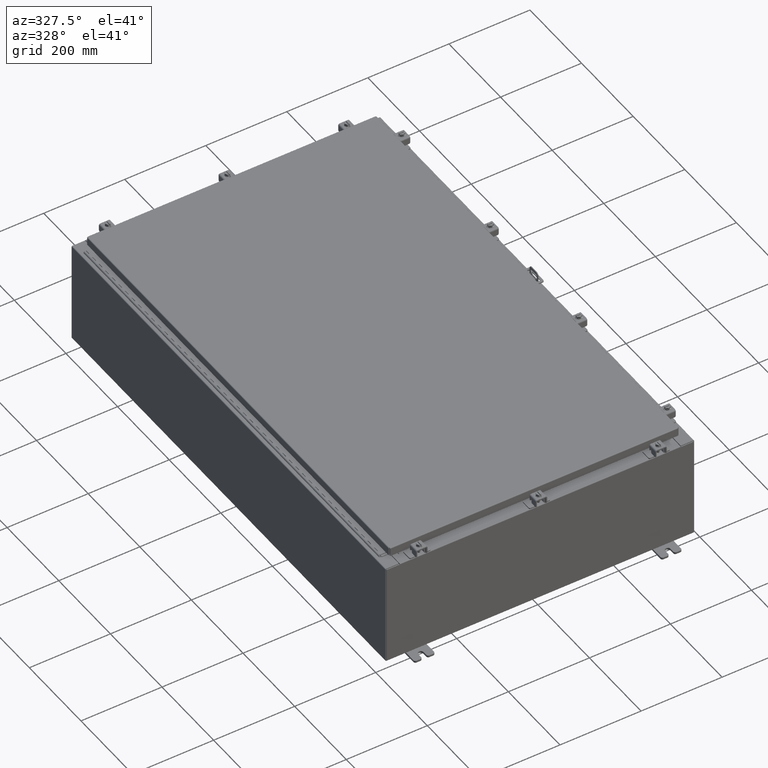
[diagram: clean part render]
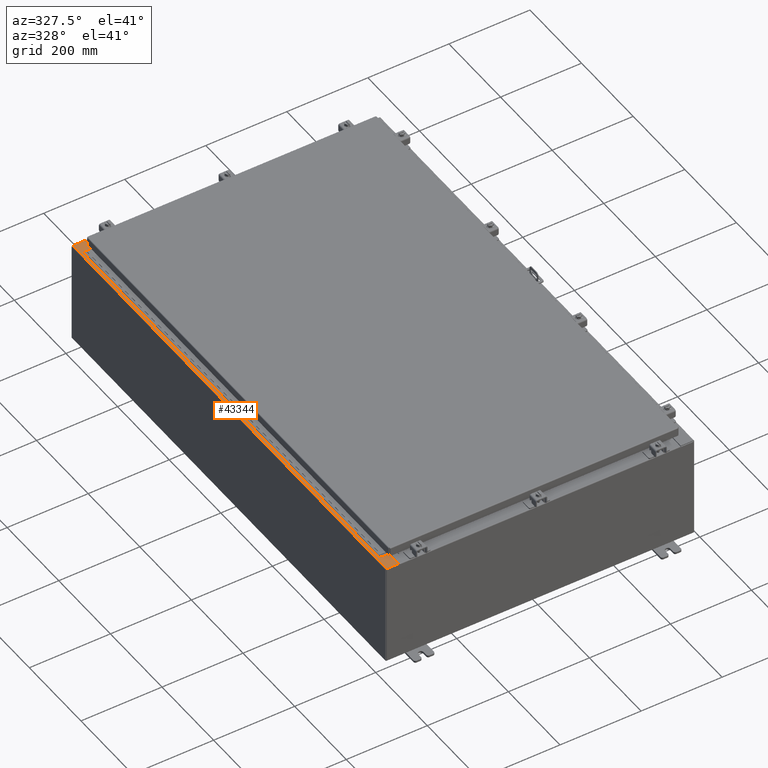
[diagram: same view with one face highlighted and labeled with its STEP entity id]
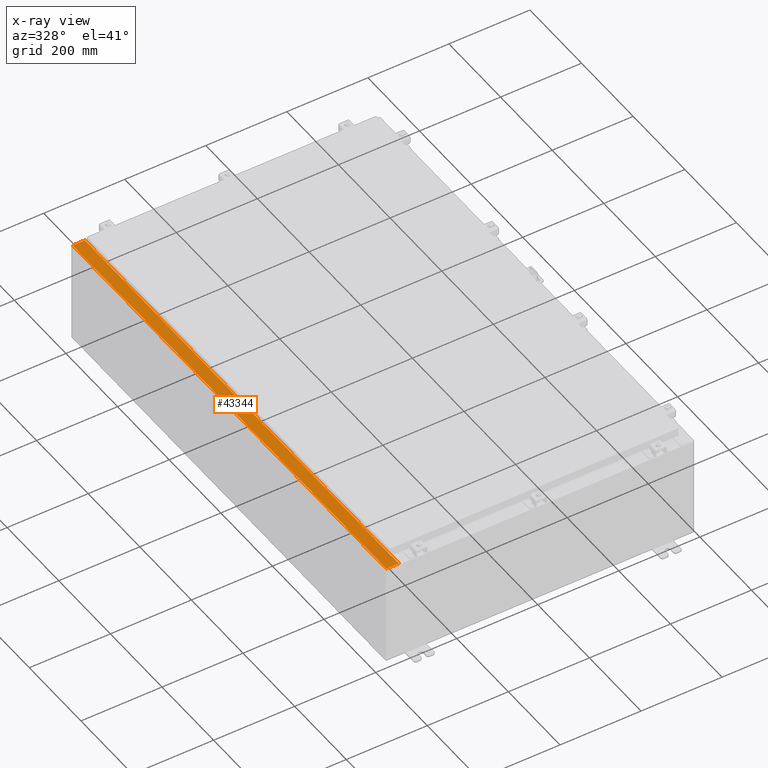
[diagram: x-ray of the same camera — body ghosted, the highlighted face saturated]
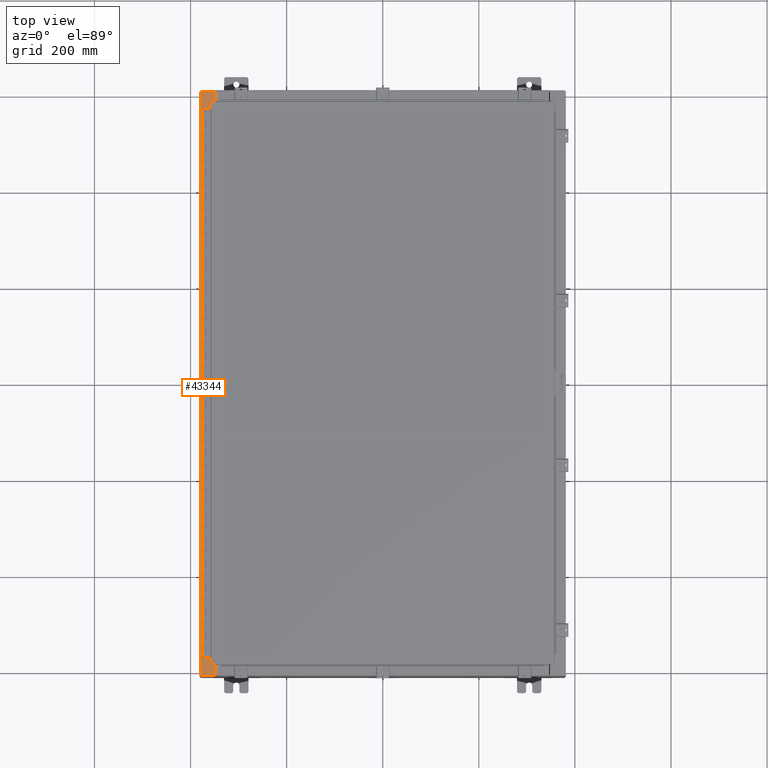
[diagram: same view with one face highlighted and labeled with its STEP entity id]
A machine part, auxiliary view. The second image highlights one B-rep face of the part: STEP entity #43344.
The next image is the same camera in x-ray: the body ghosted, the highlighted face saturated — about 0% of this face is hidden behind the body in this view.
A second angle (top view) of the same face is appended — the face is thin or edge-on in the first view.
In plain terms, the highlighted planar face has unit normal (0, -0, -1).
Its self-contained STEP definition (entity closure, byte-faithful):
#2204 = VERTEX_POINT ( 'NONE', #47019 ) ;
#3452 = VERTEX_POINT ( 'NONE', #30887 ) ;
#4749 = DIRECTION ( 'NONE',  ( 0.0000000000000000000, 1.000000000000000000, -4.567295697298281900E-017 ) ) ;
#5175 = VERTEX_POINT ( 'NONE', #52477 ) ;
#5310 = EDGE_CURVE ( 'NONE', #3452, #8280, #46243, .T. ) ;
#6237 = CARTESIAN_POINT ( 'NONE',  ( -13.71270000000003900, -22.59374999999997500, 9.925300000000008900 ) ) ;
#6486 = ORIENTED_EDGE ( 'NONE', *, *, #42518, .F. ) ;
#6745 = VECTOR ( 'NONE', #37700, 39.37007874015748100 ) ;
#6899 = CARTESIAN_POINT ( 'NONE',  ( -13.69970000000003900, -23.92529999999998200, 9.925300000000007100 ) ) ;
#8280 = VERTEX_POINT ( 'NONE', #22480 ) ;
#8391 = CARTESIAN_POINT ( 'NONE',  ( -7.105562016127584200E-014, 23.92529999999999600, 9.925300000000103000 ) ) ;
#8393 = DIRECTION ( 'NONE',  ( 1.000000000000000000, -8.681145560800197900E-014, -4.340572780400098900E-014 ) ) ;
#8451 = EDGE_CURVE ( 'NONE', #2204, #47131, #9812, .T. ) ;
#8988 = LINE ( 'NONE', #52461, #29439 ) ;
#9288 = CARTESIAN_POINT ( 'NONE',  ( -7.105562016127586800E-014, -23.92529999999998200, 9.925300000000104800 ) ) ;
#9425 = ORIENTED_EDGE ( 'NONE', *, *, #13841, .F. ) ;
#9671 = ORIENTED_EDGE ( 'NONE', *, *, #25084, .F. ) ;
#9812 = LINE ( 'NONE', #40136, #37478 ) ;
#9826 = ORIENTED_EDGE ( 'NONE', *, *, #12662, .T. ) ;
#10911 = ORIENTED_EDGE ( 'NONE', *, *, #31376, .F. ) ;
#11401 = CIRCLE ( 'NONE', #47144, 0.01867499999999949400 ) ;
#11444 = CARTESIAN_POINT ( 'NONE',  ( -13.75005000000003700, 22.63110000000000000, 9.925300000000007100 ) ) ;
#12029 = DIRECTION ( 'NONE',  ( 1.000000000000000000, 0.0000000000000000000, 0.0000000000000000000 ) ) ;
#12616 = DIRECTION ( 'NONE',  ( 0.0000000000000000000, 1.000000000000000000, -4.567295697298281900E-017 ) ) ;
#12662 = EDGE_CURVE ( 'NONE', #47131, #21442, #15382, .T. ) ;
#12702 = LINE ( 'NONE', #12742, #44312 ) ;
#12742 = CARTESIAN_POINT ( 'NONE',  ( -13.69970000000003900, 22.63110000000000400, 9.925300000000007100 ) ) ;
#12929 = VERTEX_POINT ( 'NONE', #6899 ) ;
#13677 = DIRECTION ( 'NONE',  ( -7.132762385546384700E-015, 4.567295697298281300E-017, 1.000000000000000000 ) ) ;
#13841 = EDGE_CURVE ( 'NONE', #25804, #27603, #20621, .T. ) ;
#15382 = LINE ( 'NONE', #8391, #47729 ) ;
#16269 = CARTESIAN_POINT ( 'NONE',  ( -13.69970000000003900, -22.63109999999998200, 9.925300000000007100 ) ) ;
#16659 = DIRECTION ( 'NONE',  ( -1.000000000000000000, -8.681145560800197900E-014, 4.340572780400098900E-014 ) ) ;
#16979 = DIRECTION ( 'NONE',  ( 7.132762385546384700E-015, -4.567295697298280600E-017, -1.000000000000000000 ) ) ;
#20621 = LINE ( 'NONE', #44128, #47707 ) ;
#21442 = VERTEX_POINT ( 'NONE', #48461 ) ;
#22063 = ORIENTED_EDGE ( 'NONE', *, *, #23854, .T. ) ;
#22215 = CARTESIAN_POINT ( 'NONE',  ( -13.69970000000003900, 23.92529999999999600, 9.925300000000005300 ) ) ;
#22480 = CARTESIAN_POINT ( 'NONE',  ( -13.71270000000003900, 22.59375000000000000, 9.925300000000008900 ) ) ;
#23348 = AXIS2_PLACEMENT_3D ( 'NONE', #41214, #16979, #45340 ) ;
#23854 = EDGE_CURVE ( 'NONE', #12929, #41195, #37585, .T. ) ;
#25084 = EDGE_CURVE ( 'NONE', #50417, #3452, #11401, .T. ) ;
#25650 = VECTOR ( 'NONE', #4749, 39.37007874015748100 ) ;
#25804 = VERTEX_POINT ( 'NONE', #6237 ) ;
#26365 = AXIS2_PLACEMENT_3D ( 'NONE', #37973, #13677, #41984 ) ;
#27181 = EDGE_LOOP ( 'NONE', ( #32324, #51543, #9826, #6486, #32900, #22063, #50291, #49708, #9425, #10911, #28288, #9671 ) ) ;
#27460 = CARTESIAN_POINT ( 'NONE',  ( -13.75005000000003700, -22.59374999999997500, 9.925300000000008900 ) ) ;
#27603 = VERTEX_POINT ( 'NONE', #27460 ) ;
#28046 = LINE ( 'NONE', #28790, #48183 ) ;
#28288 = ORIENTED_EDGE ( 'NONE', *, *, #5310, .F. ) ;
#28790 = CARTESIAN_POINT ( 'NONE',  ( -13.75005000000003700, -22.63109999999997500, 9.925300000000008900 ) ) ;
#29162 = PLANE ( 'NONE',  #23348 ) ;
#29439 = VECTOR ( 'NONE', #32386, 39.37007874015748100 ) ;
#29488 = EDGE_CURVE ( 'NONE', #33608, #12929, #29779, .T. ) ;
#29779 = LINE ( 'NONE', #9288, #6745 ) ;
#30577 = CARTESIAN_POINT ( 'NONE',  ( -14.91230000000003900, -23.92529999999998200, 9.925299999999998200 ) ) ;
#30887 = CARTESIAN_POINT ( 'NONE',  ( -13.75005000000003700, 22.59375000000000000, 9.925300000000007100 ) ) ;
#31376 = EDGE_CURVE ( 'NONE', #8280, #25804, #45986, .T. ) ;
#32324 = ORIENTED_EDGE ( 'NONE', *, *, #40595, .F. ) ;
#32386 = DIRECTION ( 'NONE',  ( 4.567295697298285000E-017, 1.000000000000000000, -4.567295697298248600E-017 ) ) ;
#32900 = ORIENTED_EDGE ( 'NONE', *, *, #29488, .T. ) ;
#33608 = VERTEX_POINT ( 'NONE', #30577 ) ;
#35509 = CIRCLE ( 'NONE', #26365, 0.01867499999999949400 ) ;
#36873 = FACE_OUTER_BOUND ( 'NONE', #27181, .T. ) ;
#36875 = CARTESIAN_POINT ( 'NONE',  ( -13.71270000000003900, 22.59375000000000000, 9.925300000000008900 ) ) ;
#37478 = VECTOR ( 'NONE', #12616, 39.37007874015748100 ) ;
#37585 = LINE ( 'NONE', #48828, #25650 ) ;
#37700 = DIRECTION ( 'NONE',  ( 1.000000000000000000, -4.379057701015053300E-047, 7.132762385546384700E-015 ) ) ;
#37973 = CARTESIAN_POINT ( 'NONE',  ( -13.75005000000003700, -22.61242499999997300, 9.925300000000008900 ) ) ;
#39271 = VECTOR ( 'NONE', #12029, 39.37007874015748100 ) ;
#39486 = DIRECTION ( 'NONE',  ( -7.132762385546384700E-015, 4.567295697298281300E-017, 1.000000000000000000 ) ) ;
#39657 = DIRECTION ( 'NONE',  ( 1.000000000000000000, 0.0000000000000000000, 0.0000000000000000000 ) ) ;
#40136 = CARTESIAN_POINT ( 'NONE',  ( -13.69970000000003900, 4.533177998439465900E-016, 9.925300000000007100 ) ) ;
#40595 = EDGE_CURVE ( 'NONE', #2204, #50417, #12702, .T. ) ;
#40876 = DIRECTION ( 'NONE',  ( -0.0000000000000000000, -1.000000000000000000, -0.0000000000000000000 ) ) ;
#41195 = VERTEX_POINT ( 'NONE', #16269 ) ;
#41214 = CARTESIAN_POINT ( 'NONE',  ( -7.105562016127585500E-014, 4.533177998439511200E-016, 9.925300000000104800 ) ) ;
#41508 = CARTESIAN_POINT ( 'NONE',  ( -13.75005000000003700, 22.61242500000000200, 9.925300000000008900 ) ) ;
#41984 = DIRECTION ( 'NONE',  ( 1.000000000000000000, 0.0000000000000000000, 0.0000000000000000000 ) ) ;
#42518 = EDGE_CURVE ( 'NONE', #33608, #21442, #8988, .T. ) ;
#43199 = DIRECTION ( 'NONE',  ( -1.000000000000000000, 4.379057701015053300E-047, -7.132762385546384700E-015 ) ) ;
#43344 = ADVANCED_FACE ( 'NONE', ( #36873 ), #29162, .F. ) ;
#43771 = DIRECTION ( 'NONE',  ( -1.000000000000000000, 0.0000000000000000000, 0.0000000000000000000 ) ) ;
#44128 = CARTESIAN_POINT ( 'NONE',  ( -13.71270000000003900, -22.59374999999997500, 9.925300000000008900 ) ) ;
#44312 = VECTOR ( 'NONE', #16659, 39.37007874015748100 ) ;
#44694 = VECTOR ( 'NONE', #40876, 39.37007874015748100 ) ;
#45340 = DIRECTION ( 'NONE',  ( -1.000000000000000000, 0.0000000000000000000, -7.132762385546384700E-015 ) ) ;
#45986 = LINE ( 'NONE', #36875, #44694 ) ;
#46243 = LINE ( 'NONE', #48449, #39271 ) ;
#47019 = CARTESIAN_POINT ( 'NONE',  ( -13.69970000000003900, 22.63110000000000400, 9.925300000000007100 ) ) ;
#47131 = VERTEX_POINT ( 'NONE', #22215 ) ;
#47144 = AXIS2_PLACEMENT_3D ( 'NONE', #41508, #39486, #39657 ) ;
#47707 = VECTOR ( 'NONE', #43771, 39.37007874015748100 ) ;
#47729 = VECTOR ( 'NONE', #43199, 39.37007874015748100 ) ;
#48183 = VECTOR ( 'NONE', #8393, 39.37007874015748100 ) ;
#48449 = CARTESIAN_POINT ( 'NONE',  ( -13.75005000000003700, 22.59375000000000000, 9.925300000000008900 ) ) ;
#48461 = CARTESIAN_POINT ( 'NONE',  ( -14.91230000000003900, 23.92529999999999600, 9.925299999999998200 ) ) ;
#48828 = CARTESIAN_POINT ( 'NONE',  ( -13.69970000000003900, 4.533177998439465900E-016, 9.925300000000007100 ) ) ;
#49708 = ORIENTED_EDGE ( 'NONE', *, *, #51294, .F. ) ;
#50291 = ORIENTED_EDGE ( 'NONE', *, *, #50578, .F. ) ;
#50417 = VERTEX_POINT ( 'NONE', #11444 ) ;
#50578 = EDGE_CURVE ( 'NONE', #5175, #41195, #28046, .T. ) ;
#51294 = EDGE_CURVE ( 'NONE', #27603, #5175, #35509, .T. ) ;
#51543 = ORIENTED_EDGE ( 'NONE', *, *, #8451, .T. ) ;
#52461 = CARTESIAN_POINT ( 'NONE',  ( -14.91230000000003700, 23.92529999999999600, 9.925299999999998200 ) ) ;
#52477 = CARTESIAN_POINT ( 'NONE',  ( -13.75005000000003700, -22.63109999999997500, 9.925300000000007100 ) ) ;